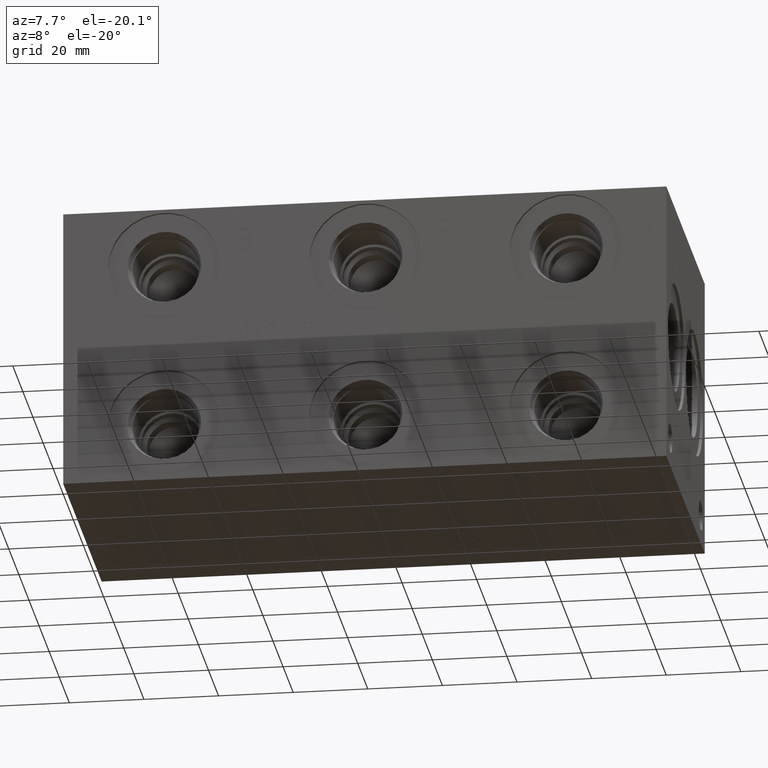
[diagram: clean part render]
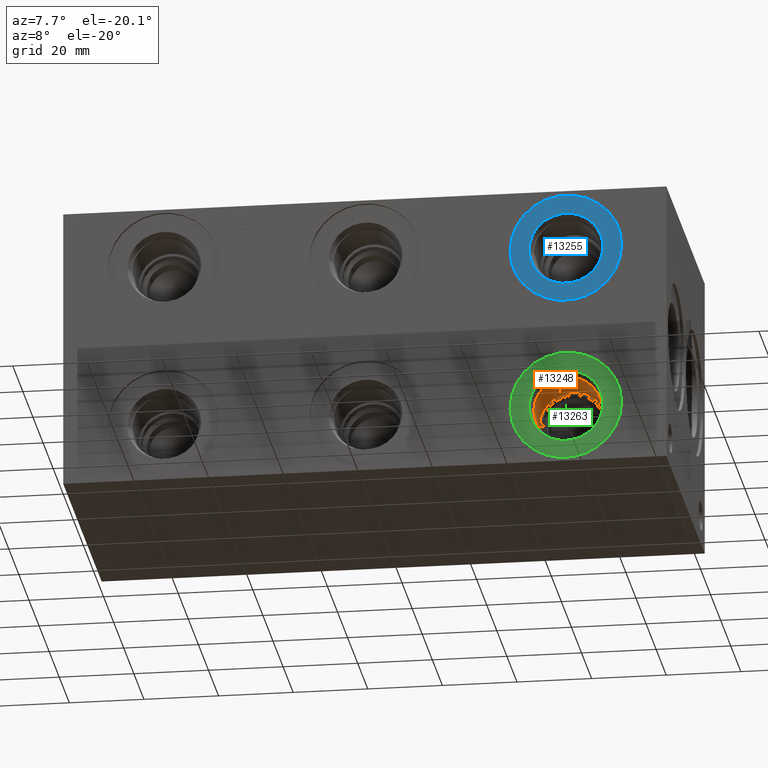
[diagram: same view with three faces highlighted in distinct colors, each labeled with its STEP entity id]
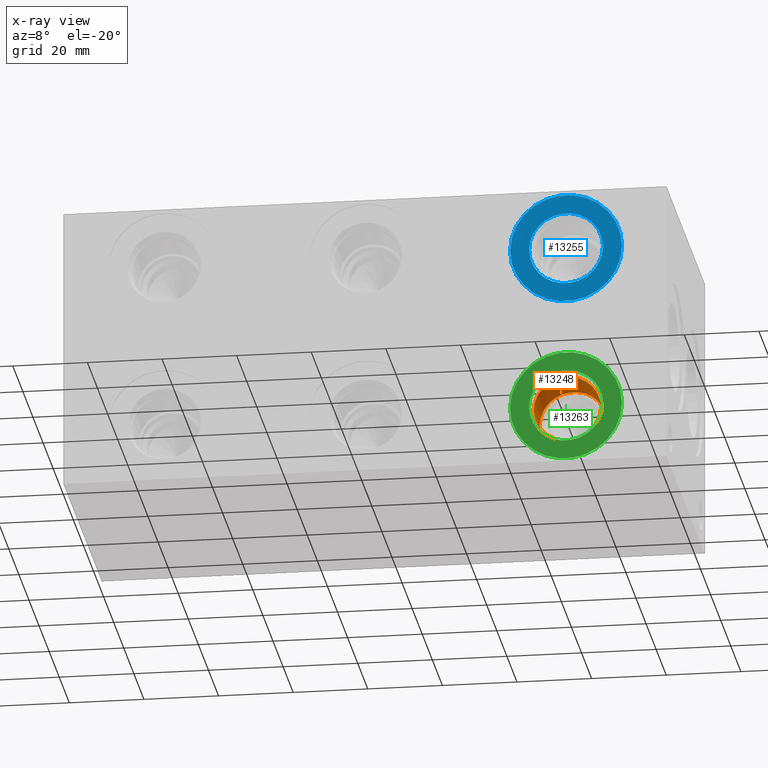
[diagram: x-ray of the same camera — body ghosted, the three highlighted faces saturated]
A machine part, auxiliary view with three faces highlighted in distinct colors.
The next image is the same camera in x-ray (body ghosted, the three faces saturated) — at least one of them is partly hidden behind the body in this view.
Their STEP definitions:

[orange] entity #13248 — the highlighted cylindrical surface (bore or boss wall) has radius 9.0043 mm, axis along (0, -1, 0).
#58=CYLINDRICAL_SURFACE('',#13991,9.0043);
#300=CIRCLE('',#13879,9.0043);
#367=CIRCLE('',#13988,9.0043);
#368=CIRCLE('',#13989,9.0043);
#1616=FACE_OUTER_BOUND('',#2384,.T.);
#2384=EDGE_LOOP('',(#11500,#11501,#11502,#11503,#11504));
#3635=LINE('',#22528,#4819);
#4819=VECTOR('',#16619,9.0043);
#6227=VERTEX_POINT('',#22302);
#6300=VERTEX_POINT('',#22521);
#6301=VERTEX_POINT('',#22522);
#7994=EDGE_CURVE('',#6227,#6227,#300,.T.);
#8097=EDGE_CURVE('',#6300,#6301,#367,.T.);
#8098=EDGE_CURVE('',#6301,#6300,#368,.T.);
#8100=EDGE_CURVE('',#6227,#6301,#3635,.T.);
#11500=ORIENTED_EDGE('',*,*,#7994,.T.);
#11501=ORIENTED_EDGE('',*,*,#8100,.T.);
#11502=ORIENTED_EDGE('',*,*,#8097,.F.);
#11503=ORIENTED_EDGE('',*,*,#8098,.F.);
#11504=ORIENTED_EDGE('',*,*,#8100,.F.);
#13248=ADVANCED_FACE('',(#1616),#58,.F.);
#13879=AXIS2_PLACEMENT_3D('',#22304,#16357,#16358);
#13988=AXIS2_PLACEMENT_3D('',#22523,#16611,#16612);
#13989=AXIS2_PLACEMENT_3D('',#22524,#16613,#16614);
#13991=AXIS2_PLACEMENT_3D('',#22527,#16617,#16618);
#16357=DIRECTION('center_axis',(0.,-1.,0.));
#16358=DIRECTION('ref_axis',(1.,0.,0.));
#16611=DIRECTION('center_axis',(0.,-1.,0.));
#16612=DIRECTION('ref_axis',(1.,0.,0.));
#16613=DIRECTION('center_axis',(0.,-1.,0.));
#16614=DIRECTION('ref_axis',(1.,0.,0.));
#16617=DIRECTION('center_axis',(0.,-1.,0.));
#16618=DIRECTION('ref_axis',(1.,0.,0.));
#16619=DIRECTION('',(0.,1.,0.));
#22302=CARTESIAN_POINT('',(125.6665,3.45783587613168,15.875));
#22304=CARTESIAN_POINT('Origin',(134.6708,3.45783587613168,15.875));
#22521=CARTESIAN_POINT('',(143.6751,15.2908,15.875));
#22522=CARTESIAN_POINT('',(125.6665,15.2908,15.875));
#22523=CARTESIAN_POINT('Origin',(134.6708,15.2908,15.875));
#22524=CARTESIAN_POINT('Origin',(134.6708,15.2908,15.875));
#22527=CARTESIAN_POINT('Origin',(134.6708,7.6454,15.875));
#22528=CARTESIAN_POINT('',(125.6665,7.6454,15.875));

[blue] entity #13255 — the highlighted planar face has unit normal (0, -1, 0).
#311=CIRCLE('',#13895,9.90600000000001);
#312=CIRCLE('',#13896,9.90600000000001);
#376=CIRCLE('',#14004,14.9987);
#377=CIRCLE('',#14005,14.9987);
#609=FACE_BOUND('',#2393,.T.);
#1003=PLANE('',#14006);
#1623=FACE_OUTER_BOUND('',#2392,.T.);
#2392=EDGE_LOOP('',(#11537,#11538));
#2393=EDGE_LOOP('',(#11539,#11540));
#6238=VERTEX_POINT('',#22334);
#6239=VERTEX_POINT('',#22335);
#6309=VERTEX_POINT('',#22551);
#6310=VERTEX_POINT('',#22553);
#8009=EDGE_CURVE('',#6238,#6239,#311,.T.);
#8010=EDGE_CURVE('',#6239,#6238,#312,.T.);
#8112=EDGE_CURVE('',#6310,#6309,#376,.T.);
#8113=EDGE_CURVE('',#6309,#6310,#377,.T.);
#11537=ORIENTED_EDGE('',*,*,#8112,.T.);
#11538=ORIENTED_EDGE('',*,*,#8113,.T.);
#11539=ORIENTED_EDGE('',*,*,#8009,.T.);
#11540=ORIENTED_EDGE('',*,*,#8010,.T.);
#13255=ADVANCED_FACE('',(#1623,#609),#1003,.T.);
#13895=AXIS2_PLACEMENT_3D('',#22336,#16393,#16394);
#13896=AXIS2_PLACEMENT_3D('',#22337,#16395,#16396);
#14004=AXIS2_PLACEMENT_3D('',#22554,#16649,#16650);
#14005=AXIS2_PLACEMENT_3D('',#22555,#16651,#16652);
#14006=AXIS2_PLACEMENT_3D('',#22556,#16653,#16654);
#16393=DIRECTION('center_axis',(0.,1.,0.));
#16394=DIRECTION('ref_axis',(1.,0.,0.));
#16395=DIRECTION('center_axis',(0.,1.,0.));
#16396=DIRECTION('ref_axis',(1.,0.,0.));
#16649=DIRECTION('center_axis',(0.,-1.,0.));
#16650=DIRECTION('ref_axis',(1.,0.,0.));
#16651=DIRECTION('center_axis',(0.,-1.,0.));
#16652=DIRECTION('ref_axis',(1.,0.,0.));
#16653=DIRECTION('center_axis',(0.,-1.,0.));
#16654=DIRECTION('ref_axis',(1.,0.,0.));
#22334=CARTESIAN_POINT('',(144.5768,0.7874,60.325));
#22335=CARTESIAN_POINT('',(124.7648,0.7874,60.325));
#22336=CARTESIAN_POINT('Origin',(134.6708,0.7874,60.325));
#22337=CARTESIAN_POINT('Origin',(134.6708,0.7874,60.325));
#22551=CARTESIAN_POINT('',(119.6721,0.7874,60.325));
#22553=CARTESIAN_POINT('',(149.6695,0.7874,60.325));
#22554=CARTESIAN_POINT('Origin',(134.6708,0.7874,60.325));
#22555=CARTESIAN_POINT('Origin',(134.6708,0.7874,60.325));
#22556=CARTESIAN_POINT('Origin',(134.6708,0.7874,60.325));

[green] entity #13263 — the highlighted planar face has unit normal (0, -1, 0).
#296=CIRCLE('',#13874,9.90600000000001);
#297=CIRCLE('',#13875,9.90600000000001);
#384=CIRCLE('',#14020,14.9987);
#385=CIRCLE('',#14021,14.9987);
#613=FACE_BOUND('',#2405,.T.);
#1007=PLANE('',#14022);
#1631=FACE_OUTER_BOUND('',#2404,.T.);
#2404=EDGE_LOOP('',(#11577,#11578));
#2405=EDGE_LOOP('',(#11579,#11580));
#6223=VERTEX_POINT('',#22292);
#6224=VERTEX_POINT('',#22293);
#6317=VERTEX_POINT('',#22579);
#6318=VERTEX_POINT('',#22581);
#7988=EDGE_CURVE('',#6223,#6224,#296,.T.);
#7989=EDGE_CURVE('',#6224,#6223,#297,.T.);
#8124=EDGE_CURVE('',#6318,#6317,#384,.T.);
#8125=EDGE_CURVE('',#6317,#6318,#385,.T.);
#11577=ORIENTED_EDGE('',*,*,#8124,.T.);
#11578=ORIENTED_EDGE('',*,*,#8125,.T.);
#11579=ORIENTED_EDGE('',*,*,#7988,.T.);
#11580=ORIENTED_EDGE('',*,*,#7989,.T.);
#13263=ADVANCED_FACE('',(#1631,#613),#1007,.T.);
#13874=AXIS2_PLACEMENT_3D('',#22294,#16345,#16346);
#13875=AXIS2_PLACEMENT_3D('',#22295,#16347,#16348);
#14020=AXIS2_PLACEMENT_3D('',#22582,#16685,#16686);
#14021=AXIS2_PLACEMENT_3D('',#22583,#16687,#16688);
#14022=AXIS2_PLACEMENT_3D('',#22584,#16689,#16690);
#16345=DIRECTION('center_axis',(0.,1.,0.));
#16346=DIRECTION('ref_axis',(1.,0.,0.));
#16347=DIRECTION('center_axis',(0.,1.,0.));
#16348=DIRECTION('ref_axis',(1.,0.,0.));
#16685=DIRECTION('center_axis',(0.,-1.,0.));
#16686=DIRECTION('ref_axis',(1.,0.,0.));
#16687=DIRECTION('center_axis',(0.,-1.,0.));
#16688=DIRECTION('ref_axis',(1.,0.,0.));
#16689=DIRECTION('center_axis',(0.,-1.,0.));
#16690=DIRECTION('ref_axis',(1.,0.,0.));
#22292=CARTESIAN_POINT('',(144.5768,0.7874,15.875));
#22293=CARTESIAN_POINT('',(124.7648,0.7874,15.875));
#22294=CARTESIAN_POINT('Origin',(134.6708,0.7874,15.875));
#22295=CARTESIAN_POINT('Origin',(134.6708,0.7874,15.875));
#22579=CARTESIAN_POINT('',(119.6721,0.7874,15.875));
#22581=CARTESIAN_POINT('',(149.6695,0.7874,15.875));
#22582=CARTESIAN_POINT('Origin',(134.6708,0.7874,15.875));
#22583=CARTESIAN_POINT('Origin',(134.6708,0.7874,15.875));
#22584=CARTESIAN_POINT('Origin',(134.6708,0.7874,15.875));